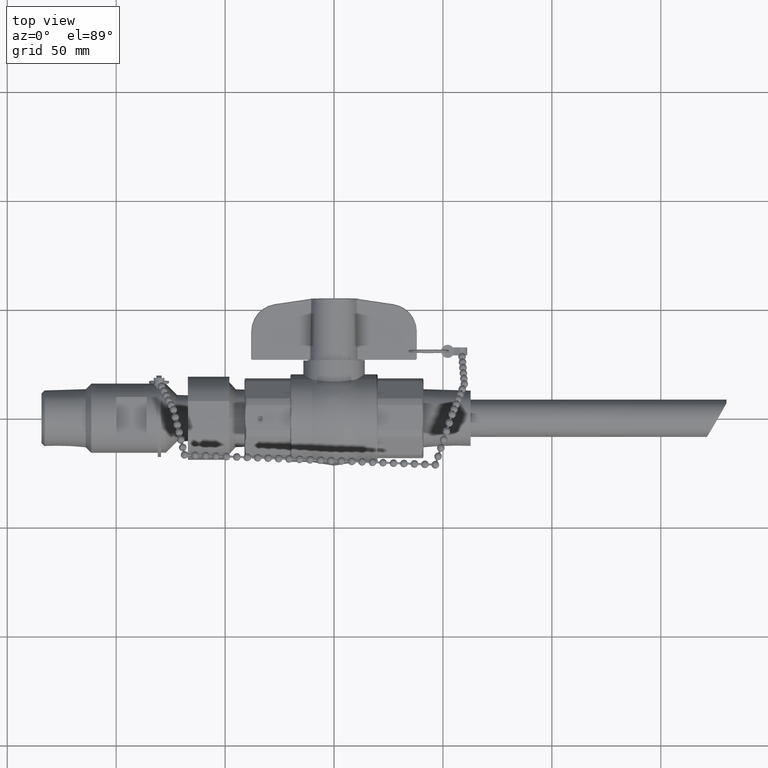
[diagram: clean part render]
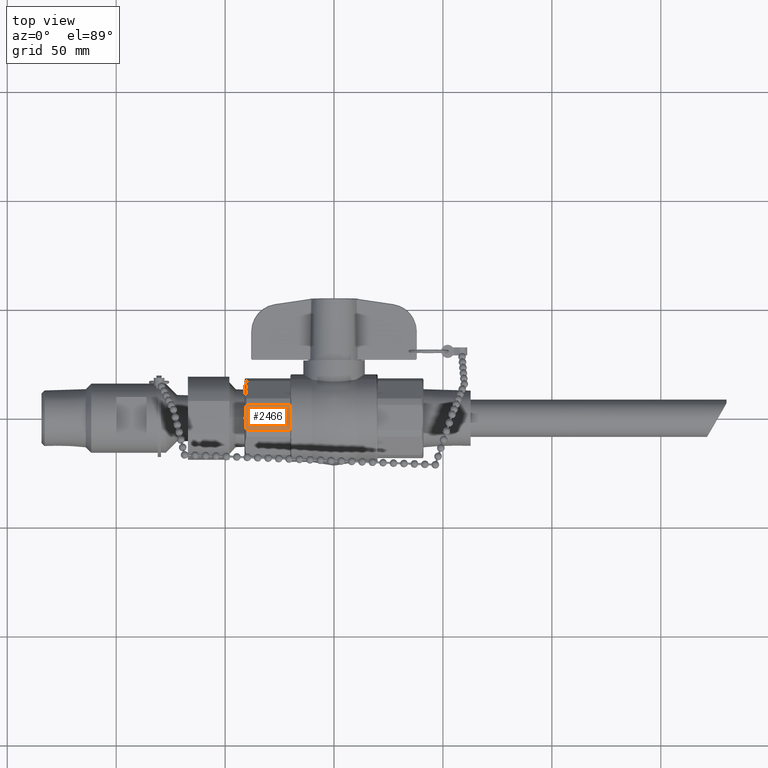
[diagram: same view with one face highlighted and labeled with its STEP entity id]
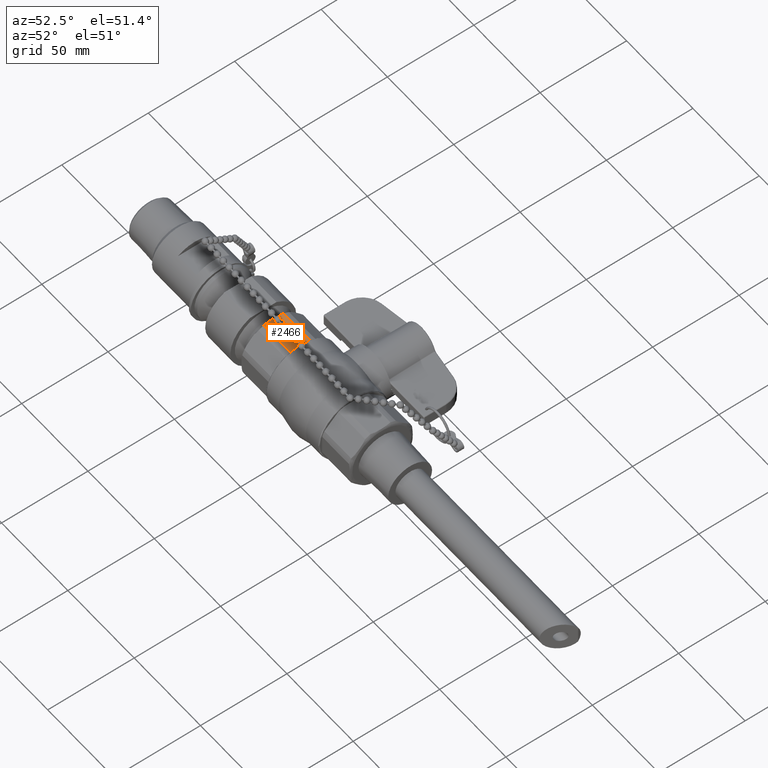
[diagram: same view with one face highlighted and labeled with its STEP entity id]
A machine part, top view. The second image highlights one B-rep face of the part: STEP entity #2466.
A second angle (auxiliary view) of the same face is appended — the face is thin or edge-on in the first view.
In plain terms, the highlighted planar face has unit normal (0, 0, 1).
Its self-contained STEP definition (entity closure, byte-faithful):
#2409=CARTESIAN_POINT('',(-1.618000000000000,-0.297198231002696,0.717500000000000));
#2410=DIRECTION('',(0.0,0.0,1.0));
#2411=DIRECTION('',(1.0,0.0,0.0));
#2412=AXIS2_PLACEMENT_3D('',#2409,#2410,#2411);
#2413=PLANE('',#2412);
#2414=CARTESIAN_POINT('',(-0.788000000000000,0.225161608628114,0.717500000000000));
#2415=VERTEX_POINT('',#2414);
#2416=CARTESIAN_POINT('',(-1.585112702674458,0.225161608741502,0.717499999983043));
#2417=VERTEX_POINT('',#2416);
#2418=CARTESIAN_POINT('',(-0.788000000000000,0.225161608628114,0.717500000000000));
#2419=DIRECTION('',(-1.0,0.0,0.0));
#2420=VECTOR('',#2419,0.797112702674458);
#2421=LINE('',#2418,#2420);
#2422=EDGE_CURVE('',#2415,#2417,#2421,.T.);
#2423=ORIENTED_EDGE('',*,*,#2422,.T.);
#2424=CARTESIAN_POINT('',(-1.585112702674458,-0.225161608741502,0.717499999983043));
#2425=VERTEX_POINT('',#2424);
#2426=CARTESIAN_POINT('',(-1.585112702675817,-0.225161608741875,0.717500000000000));
#2427=CARTESIAN_POINT('',(-1.593438193005176,-0.194850897004482,0.717500000000000));
#2428=CARTESIAN_POINT('',(-1.598495457444079,-0.162194368860831,0.717500000000000));
#2429=CARTESIAN_POINT('',(-1.606212016415178,-0.085193501644084,0.717500000000000));
#2430=CARTESIAN_POINT('',(-1.607564392373896,-0.040601387131935,0.717500000000000));
#2431=CARTESIAN_POINT('',(-1.607564392373896,0.040601387131935,0.717500000000000));
#2432=CARTESIAN_POINT('',(-1.606212016415178,0.085193501644084,0.717500000000000));
#2433=CARTESIAN_POINT('',(-1.598495457444079,0.162194368860831,0.717500000000000));
#2434=CARTESIAN_POINT('',(-1.593438193005176,0.194850897004482,0.717500000000000));
#2435=CARTESIAN_POINT('',(-1.585112702675817,0.225161608741876,0.717500000000000));
#2436=B_SPLINE_CURVE_WITH_KNOTS('',3,(#2426,#2427,#2428,#2429,#2430,#2431,#2432,#2433,#2434,#2435),.UNSPECIFIED.,.F.,.U.,(4,2,2,2,4),(1.287546716189351,1.519762369350839,1.829144939296182,2.138527509241525,2.370743162403013),.UNSPECIFIED.);
#2437=EDGE_CURVE('',#2425,#2417,#2436,.T.);
#2438=ORIENTED_EDGE('',*,*,#2437,.F.);
#2439=CARTESIAN_POINT('',(-0.788000000000000,-0.225161608628114,0.717500000000000));
#2440=VERTEX_POINT('',#2439);
#2441=CARTESIAN_POINT('',(-1.585112702674458,-0.225161608628114,0.717500000000000));
#2442=DIRECTION('',(1.0,0.0,0.0));
#2443=VECTOR('',#2442,0.797112702674458);
#2444=LINE('',#2441,#2443);
#2445=EDGE_CURVE('',#2425,#2440,#2444,.T.);
#2446=ORIENTED_EDGE('',*,*,#2445,.T.);
#2447=CARTESIAN_POINT('',(-0.788000000000000,-0.225161608628114,0.717500000000000));
#2448=DIRECTION('',(0.0,1.0,0.0));
#2449=VECTOR('',#2448,0.450323217256228);
#2450=LINE('',#2447,#2449);
#2451=EDGE_CURVE('',#2440,#2415,#2450,.T.);
#2452=ORIENTED_EDGE('',*,*,#2451,.T.);
#2453=EDGE_LOOP('',(#2423,#2438,#2446,#2452));
#2454=FACE_OUTER_BOUND('',#2453,.T.);
#2455=CARTESIAN_POINT('',(-1.260112702710021,-0.024838391304729,0.717500000000000));
#2456=VERTEX_POINT('',#2455);
#2457=CARTESIAN_POINT('',(-1.335112702710021,-0.024838391294060,0.717500000000000));
#2458=DIRECTION('',(1.224647E-016,-1.742047E-026,-1.0));
#2459=DIRECTION('',(-1.0,1.422489E-010,-1.224647E-016));
#2460=AXIS2_PLACEMENT_3D('',#2457,#2458,#2459);
#2461=CIRCLE('',#2460,0.075000000000000);
#2462=EDGE_CURVE('',#2456,#2456,#2461,.T.);
#2463=ORIENTED_EDGE('',*,*,#2462,.T.);
#2464=EDGE_LOOP('',(#2463));
#2465=FACE_BOUND('',#2464,.T.);
#2466=ADVANCED_FACE('',(#2454,#2465),#2413,.T.);